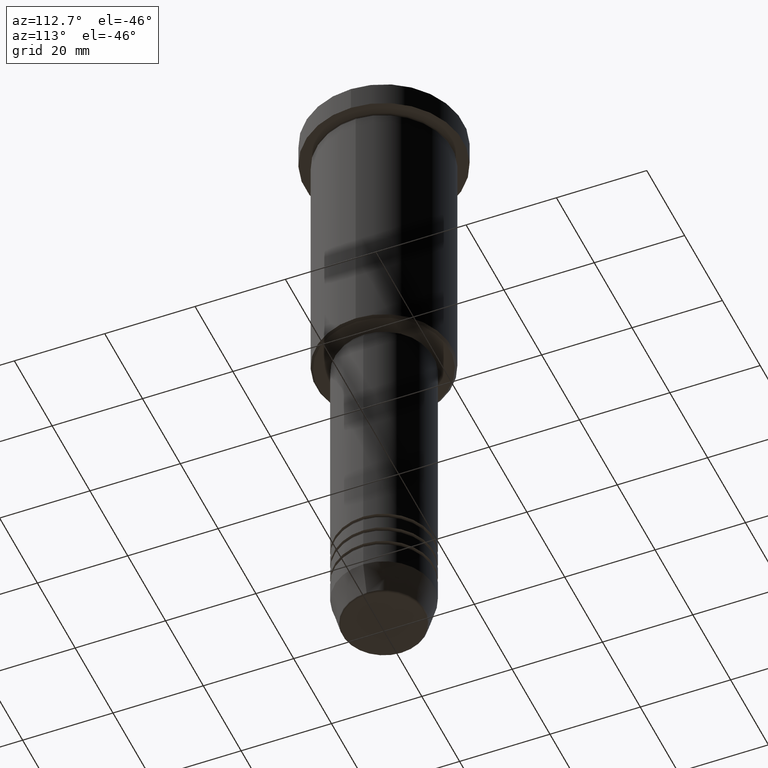
[diagram: clean part render]
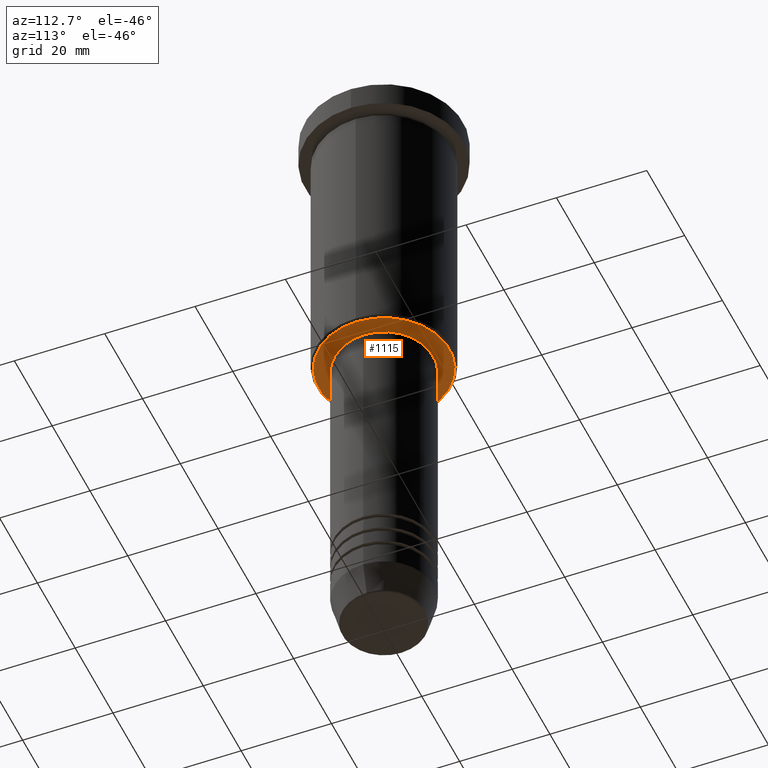
[diagram: same view with one face highlighted and labeled with its STEP entity id]
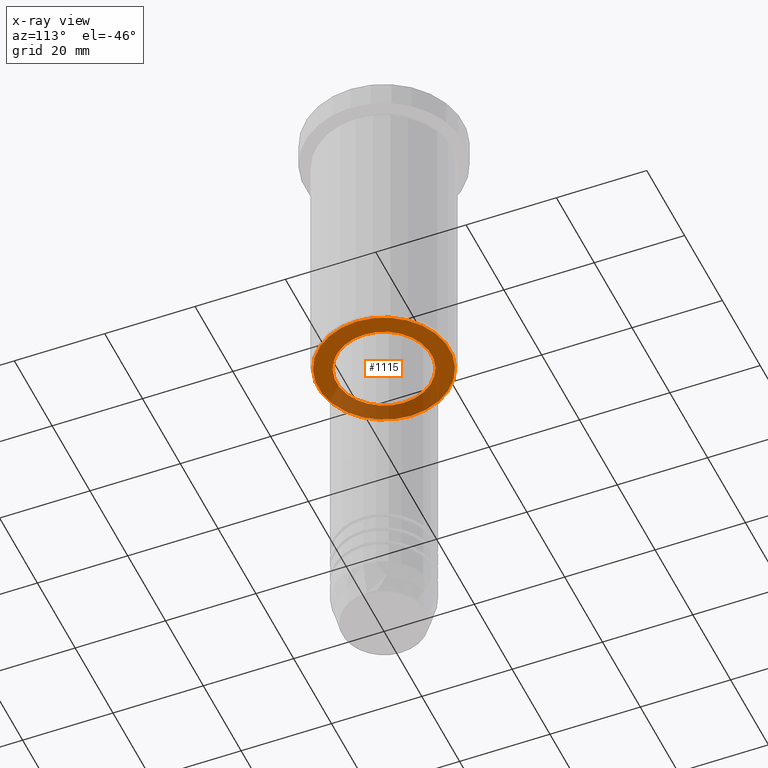
[diagram: x-ray of the same camera — body ghosted, the highlighted face saturated]
A machine part, auxiliary view. The second image highlights one B-rep face of the part: STEP entity #1115.
The next image is the same camera in x-ray: the body ghosted, the highlighted face saturated — about 31% of this face is hidden behind the body in this view.
In plain terms, the highlighted planar face has unit normal (0, 0, -1).
Its self-contained STEP definition (entity closure, byte-faithful):
#61 = CIRCLE ( 'NONE', #909, 10.49999999999999822 ) ;
#101 = CIRCLE ( 'NONE', #364, 10.49999999999999822 ) ;
#124 = AXIS2_PLACEMENT_3D ( 'NONE', #658, #395, #392 ) ;
#156 = CIRCLE ( 'NONE', #531, 14.49999999999999645 ) ;
#161 = EDGE_CURVE ( 'NONE', #506, #475, #61, .T. ) ;
#181 = CARTESIAN_POINT ( 'NONE',  ( 0.000000000000000000, 15.00000000000000000, -66.00000000000000000 ) ) ;
#204 = ORIENTED_EDGE ( 'NONE', *, *, #742, .T. ) ;
#270 = DIRECTION ( 'NONE',  ( 1.000000000000000000, 0.000000000000000000, 0.000000000000000000 ) ) ;
#288 = VERTEX_POINT ( 'NONE', #1074 ) ;
#291 = CARTESIAN_POINT ( 'NONE',  ( 14.49999999999999645, 0.000000000000000000, -66.00000000000000000 ) ) ;
#307 = DIRECTION ( 'NONE',  ( -0.000000000000000000, -0.000000000000000000, 1.000000000000000000 ) ) ;
#310 = CARTESIAN_POINT ( 'NONE',  ( 0.000000000000000000, 0.000000000000000000, -66.00000000000000000 ) ) ;
#357 = DIRECTION ( 'NONE',  ( -1.000000000000000000, 0.000000000000000000, -0.000000000000000000 ) ) ;
#364 = AXIS2_PLACEMENT_3D ( 'NONE', #946, #503, #270 ) ;
#366 = ORIENTED_EDGE ( 'NONE', *, *, #369, .T. ) ;
#369 = EDGE_CURVE ( 'NONE', #475, #506, #101, .T. ) ;
#376 = CARTESIAN_POINT ( 'NONE',  ( -10.49999999999999822, 1.285879139104720633E-15, -66.00000000000000000 ) ) ;
#392 = DIRECTION ( 'NONE',  ( -1.000000000000000000, 0.000000000000000000, 0.000000000000000000 ) ) ;
#395 = DIRECTION ( 'NONE',  ( 0.000000000000000000, 0.000000000000000000, -1.000000000000000000 ) ) ;
#418 = EDGE_LOOP ( 'NONE', ( #366, #915 ) ) ;
#447 = CARTESIAN_POINT ( 'NONE',  ( 0.000000000000000000, 0.000000000000000000, -66.00000000000000000 ) ) ;
#475 = VERTEX_POINT ( 'NONE', #987 ) ;
#503 = DIRECTION ( 'NONE',  ( -0.000000000000000000, -0.000000000000000000, 1.000000000000000000 ) ) ;
#506 = VERTEX_POINT ( 'NONE', #376 ) ;
#513 = EDGE_LOOP ( 'NONE', ( #813, #204 ) ) ;
#531 = AXIS2_PLACEMENT_3D ( 'NONE', #310, #1066, #588 ) ;
#584 = EDGE_CURVE ( 'NONE', #1132, #288, #1037, .T. ) ;
#588 = DIRECTION ( 'NONE',  ( -1.000000000000000000, 0.000000000000000000, 0.000000000000000000 ) ) ;
#622 = PLANE ( 'NONE',  #897 ) ;
#658 = CARTESIAN_POINT ( 'NONE',  ( 0.000000000000000000, 0.000000000000000000, -66.00000000000000000 ) ) ;
#742 = EDGE_CURVE ( 'NONE', #288, #1132, #156, .T. ) ;
#761 = DIRECTION ( 'NONE',  ( 1.000000000000000000, 0.000000000000000000, 0.000000000000000000 ) ) ;
#793 = FACE_BOUND ( 'NONE', #418, .T. ) ;
#796 = FACE_OUTER_BOUND ( 'NONE', #513, .T. ) ;
#813 = ORIENTED_EDGE ( 'NONE', *, *, #584, .T. ) ;
#897 = AXIS2_PLACEMENT_3D ( 'NONE', #181, #1072, #357 ) ;
#909 = AXIS2_PLACEMENT_3D ( 'NONE', #447, #307, #761 ) ;
#915 = ORIENTED_EDGE ( 'NONE', *, *, #161, .T. ) ;
#946 = CARTESIAN_POINT ( 'NONE',  ( 0.000000000000000000, 0.000000000000000000, -66.00000000000000000 ) ) ;
#987 = CARTESIAN_POINT ( 'NONE',  ( 10.49999999999999822, 0.000000000000000000, -66.00000000000000000 ) ) ;
#1037 = CIRCLE ( 'NONE', #124, 14.49999999999999645 ) ;
#1066 = DIRECTION ( 'NONE',  ( 0.000000000000000000, 0.000000000000000000, -1.000000000000000000 ) ) ;
#1072 = DIRECTION ( 'NONE',  ( 0.000000000000000000, 0.000000000000000000, -1.000000000000000000 ) ) ;
#1074 = CARTESIAN_POINT ( 'NONE',  ( -14.49999999999999645, 1.806354028742345802E-15, -66.00000000000000000 ) ) ;
#1115 = ADVANCED_FACE ( 'NONE', ( #796, #793 ), #622, .T. ) ;
#1132 = VERTEX_POINT ( 'NONE', #291 ) ;